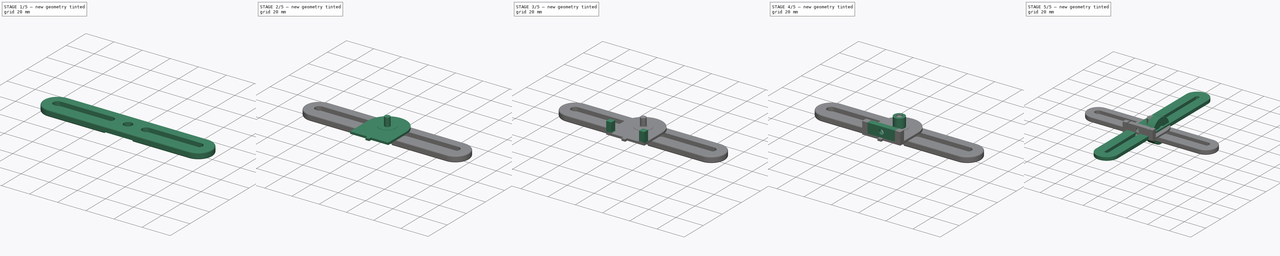
[diagram: build sequence overview — one tinted view per stage of 5, left to right]
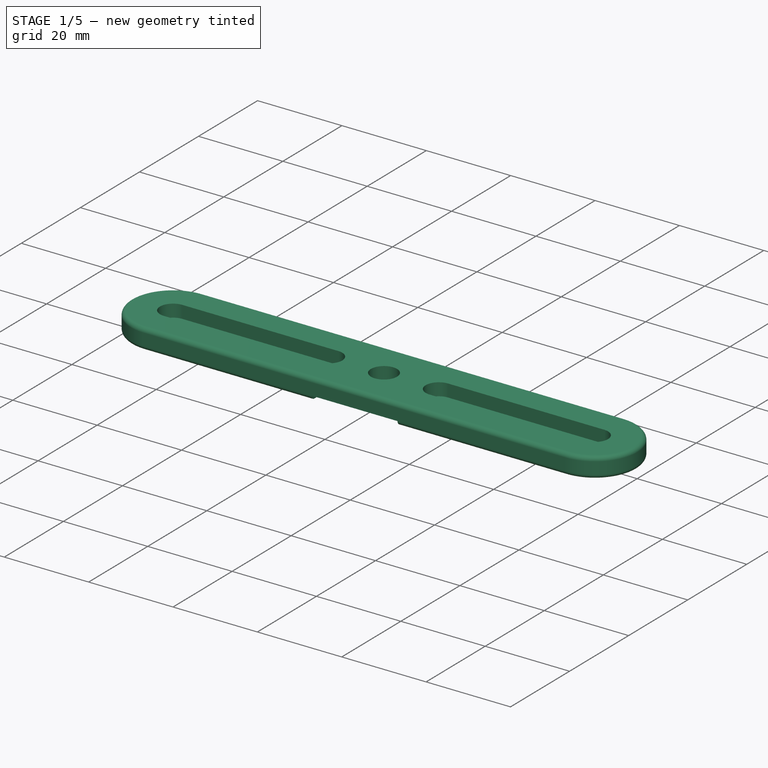
[diagram: stage 1 of 5 — iso view after this stage's code; geometry added in this stage tinted green]
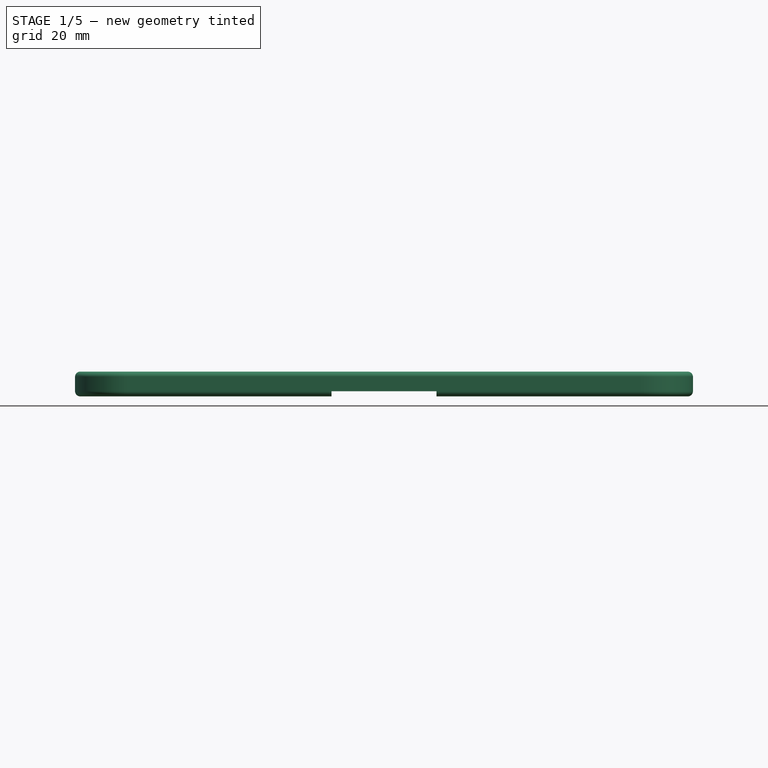
[diagram: stage 1 of 5 — front view after this stage's code; geometry added in this stage tinted green]
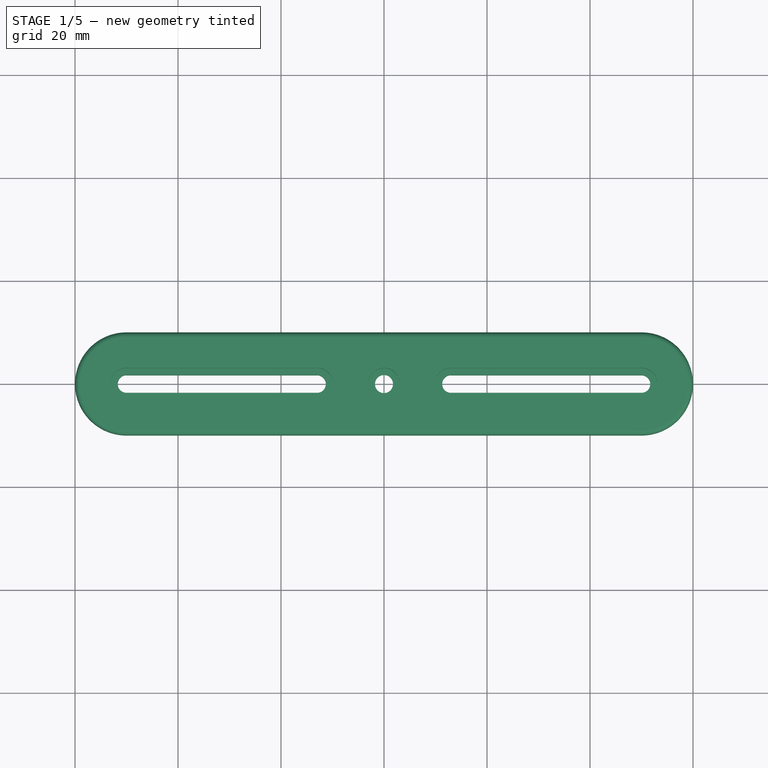
[diagram: stage 1 of 5 — top view after this stage's code; geometry added in this stage tinted green]
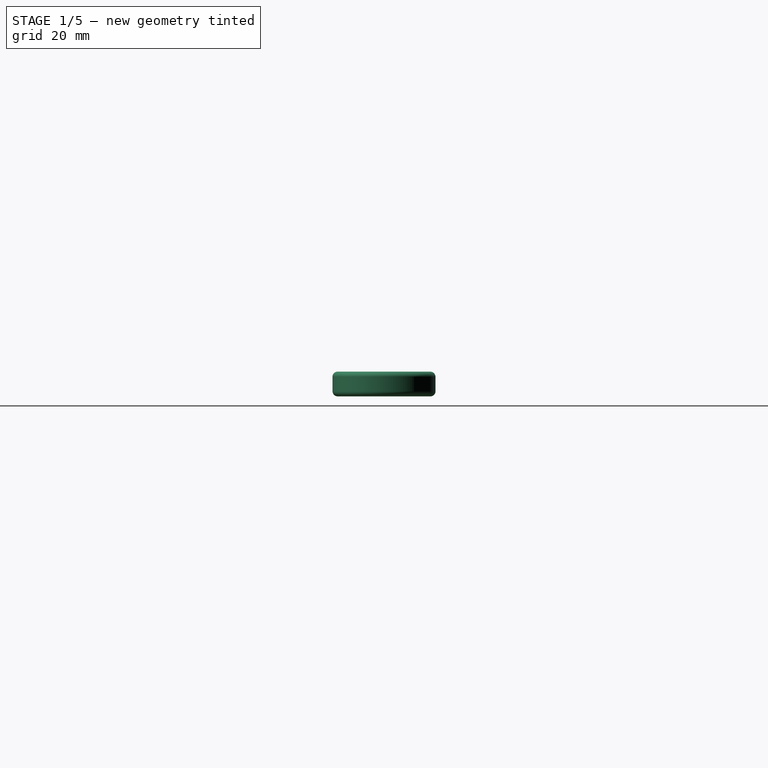
[diagram: stage 1 of 5 — right view after this stage's code; geometry added in this stage tinted green]
FCSTD DOCUMENT  (FreeCAD 0.17R13541 (Git))
Label: FilaRoller
License: All rights reserved
LicenseURL: http://en.wikipedia.org/wiki/All_rights_reserved
objects: Sketcher::SketchObject×14, PartDesign::Pad×11, PartDesign::Fillet×7, PartDesign::Pocket×3, App::DocumentObjectGroup×3, Spreadsheet::Sheet×1, Part::Cut×1, Part::FeaturePython×1
note: 51 computed .brp shape members not serialized (recipe doc carries the construction recipe); baked Part::Feature solids carry a one-line shape summary decoded from their .brp

FEATURE [Sketcher::SketchObject] Sketch  label="Stand"
  MapMode = 5
  expr: Constraints[4] = Params.StandWidth
  expr: Constraints[3] = Params.StandLength
  sketch-geometry (13):
    g0: LineSegment StartX=-50 StartY=10 StartZ=0 EndX=50 EndY=10 EndZ=0
    g1: LineSegment StartX=50 StartY=-10 StartZ=0 EndX=-50 EndY=-10 EndZ=0
    g2: ArcOfCircle CenterX=-50 CenterY=0 CenterZ=0 NormalX=0 NormalY=0 NormalZ=1 AngleXU=0 Radius=10 StartAngle=1.5708 EndAngle=4.71239
    g3: ArcOfCircle CenterX=50 CenterY=0 CenterZ=0 NormalX=0 NormalY=0 NormalZ=1 AngleXU=0 Radius=10 StartAngle=4.71239 EndAngle=7.85398
    g4: ArcOfCircle CenterX=-50 CenterY=0 CenterZ=0 NormalX=0 NormalY=0 NormalZ=1 AngleXU=0 Radius=1.7 StartAngle=1.57079 EndAngle=4.7124
    g5: ArcOfCircle CenterX=50 CenterY=0 CenterZ=0 NormalX=0 NormalY=0 NormalZ=1 AngleXU=0 Radius=1.7 StartAngle=4.71238 EndAngle=7.85398
    g6: LineSegment StartX=-50 StartY=1.7 StartZ=0 EndX=-13 EndY=1.7 EndZ=0
    g7: LineSegment StartX=13 StartY=1.7 StartZ=0 EndX=50 EndY=1.7 EndZ=0
    g8: LineSegment StartX=-50 StartY=-1.7 StartZ=0 EndX=-13 EndY=-1.7 EndZ=0
    g9: LineSegment StartX=13 StartY=-1.7 StartZ=0 EndX=50 EndY=-1.7 EndZ=0
    g10: ArcOfCircle CenterX=-13 CenterY=0 CenterZ=0 NormalX=0 NormalY=0 NormalZ=1 AngleXU=0 Radius=1.7 StartAngle=4.71239 EndAngle=7.85399
    g11: ArcOfCircle CenterX=13 CenterY=0 CenterZ=0 NormalX=0 NormalY=0 NormalZ=1 AngleXU=0 Radius=1.7 StartAngle=1.57079 EndAngle=4.71239
    g12: Circle CenterX=0 CenterY=0 CenterZ=0 NormalX=0 NormalY=0 NormalZ=1 AngleXU=0 Radius=1.75
  constraints (39):
    c: Horizontal(g0)
    c: Horizontal(g1)
    c: Symmetric(g1,g0,g-1)
    c: DistanceX(g0,g0) = 100
    c: DistanceY(g1,g0) = 20
    c: PointOnObject(g2,g-1)
    c: Coincident(g2,g0)
    c: Coincident(g2,g1)
    c: PointOnObject(g3,g-1)
    c: Coincident(g3,g0)
    c: Coincident(g3,g1)
    c: Tangent(g2,g0)
    c: Equal(g2,g3)
    c: Symmetric(g4,g5,g-1)
    c: DistanceY(g4,g4) = 3.4
    c: Coincident(g4,g2)
    c: Coincident(g5,g3)
    c: Symmetric(g6,g7,g-2)
    c: Coincident(g6,g4)
    c: Horizontal(g6)
    c: Coincident(g7,g5)
    c: Horizontal(g7)
    c: DistanceX(g6,g7) = 26
    c: Coincident(g8,g4)
    c: Horizontal(g8)
    c: Coincident(g9,g5)
    c: Horizontal(g9)
    c: Equal(g6,g8)
    c: Equal(g7,g9)
    c: PointOnObject(g10,g-1)
    c: Coincident(g10,g6)
    c: Coincident(g10,g8)
    c: PointOnObject(g11,g-1)
    c: Coincident(g11,g7)
    c: Coincident(g11,g9)
    c: Tangent(g9,g11)
    c: Tangent(g8,g10)
    c: Coincident(g12,g-1)
    c: Radius(g12) = 1.75
FEATURE [Spreadsheet::Sheet] Spreadsheet  label="Params"
  cells = A2=StandLength; B2(StandLength)=100; A3=StandWidth; B3(StandWidth)=20; A4=BridgeLength; B4(BridgeLength)=120; A5=BridgeWidth; B5(BridgeWidth)=20
FEATURE [Sketcher::SketchObject] Sketch001  label="StandScrewHeadGroove"
  MapMode = 5
  sketch-geometry (9):
    g0: ArcOfCircle CenterX=-50 CenterY=0 CenterZ=0 NormalX=0 NormalY=0 NormalZ=1 AngleXU=0 Radius=3.1 StartAngle=1.5708 EndAngle=4.71239
    g1: ArcOfCircle CenterX=50 CenterY=0 CenterZ=0 NormalX=0 NormalY=0 NormalZ=1 AngleXU=0 Radius=3.1 StartAngle=4.71239 EndAngle=7.85398
    g2: LineSegment StartX=-50 StartY=-3.1 StartZ=0 EndX=-13 EndY=-3.1 EndZ=0
    g3: LineSegment StartX=13 StartY=-3.1 StartZ=0 EndX=50 EndY=-3.1 EndZ=0
    g4: LineSegment StartX=-50 StartY=3.1 StartZ=0 EndX=-13 EndY=3.1 EndZ=0
    g5: LineSegment StartX=13 StartY=3.1 StartZ=0 EndX=50 EndY=3.1 EndZ=0
    g6: ArcOfCircle CenterX=-13 CenterY=0 CenterZ=0 NormalX=0 NormalY=0 NormalZ=1 AngleXU=0 Radius=3.1 StartAngle=4.71239 EndAngle=7.85399
    g7: ArcOfCircle CenterX=13 CenterY=0 CenterZ=0 NormalX=0 NormalY=0 NormalZ=1 AngleXU=0 Radius=3.1 StartAngle=1.57079 EndAngle=4.71239
    g8: Circle CenterX=0 CenterY=0 CenterZ=0 NormalX=0 NormalY=0 NormalZ=1 AngleXU=0 Radius=3.1
  constraints (29):
    c: Symmetric(g0,g1,g-1)
    c: DistanceY(g0,g0) = 6.2
    c: DistanceX(g0,g1) = 100
    c: Equal(g0,g1)
    c: DistanceX(g4,g5) = 26
    c: Coincident(g2,g0)
    c: Horizontal(g2)
    c: Coincident(g3,g1)
    c: Horizontal(g3)
    c: Coincident(g4,g0)
    c: Horizontal(g4)
    c: Coincident(g5,g1)
    c: Horizontal(g5)
    c: Equal(g5,g3)
    c: Equal(g3,g2)
    c: Equal(g2,g4)
    c: PointOnObject(g0,g-1)
    c: Tangent(g1,g5)
    c: Tangent(g0,g2)
    c: PointOnObject(g6,g-1)
    c: Coincident(g6,g4)
    c: Coincident(g6,g2)
    c: PointOnObject(g7,g-1)
    c: Coincident(g7,g5)
    c: Coincident(g7,g3)
    c: Tangent(g7,g3)
    c: Tangent(g4,g6)
    c: Coincident(g8,g-1)
    c: Radius(g8) = 3.1
FEATURE [PartDesign::Pad] Pad  label="_Stand"
  Length = 4.8
  Length2 = 100
  Profile = -> Sketch
  Type = 0
FEATURE [PartDesign::Pad] Pad001  label="_StandScrewHeadGroove"
  Length = 3
  Length2 = 100
  Profile = -> Sketch001
  Type = 0
FEATURE [PartDesign::Fillet] Fillet
  Base = -> Pad [Edge10,Edge12,Edge4,Edge7,Edge6,Edge9,Edge11,Edge3]
  Radius = 1
FEATURE [Part::Cut] Cut  label="Stand_Final"
  Base = -> Fillet
  Placement = pos=(0,0,0) rot=(1,0,0;3.14159rad)
  Tool = -> Pad001
FEATURE [App::DocumentObjectGroup] Group002  label="Bearing_B"
  Group = -> [Clone,Pad011,Pad012,Pad013,Fillet004,Fillet005,Fillet006]
FEATURE [Sketcher::SketchObject] Sketch013
  MapMode = 5
  Placement = pos=(0,0,-4.8) rot=(1,0,0;3.14159rad)
  Support = -> [Cut]
  sketch-geometry (4):
    g0: LineSegment StartX=-10.2 StartY=10.2 StartZ=0 EndX=10.2 EndY=10.2 EndZ=0
    g1: LineSegment StartX=10.2 StartY=10.2 StartZ=0 EndX=10.2 EndY=-10.2 EndZ=0
    g2: LineSegment StartX=10.2 StartY=-10.2 StartZ=0 EndX=-10.2 EndY=-10.2 EndZ=0
    g3: LineSegment StartX=-10.2 StartY=-10.2 StartZ=0 EndX=-10.2 EndY=10.2 EndZ=0
  constraints (11):
    c: Coincident(g0,g1)
    c: Coincident(g1,g2)
    c: Coincident(g2,g3)
    c: Coincident(g3,g0)
    c: Horizontal(g0)
    c: Horizontal(g2)
    c: Vertical(g1)
    c: Vertical(g3)
    c: Symmetric(g0,g1,g-1)
    c: DistanceX(g0,g0) = 20.4
    c: Equal(g3,g0)
FEATURE [PartDesign::Pocket] Pocket002
  Length = 1
  Length2 = 100
  Placement = pos=(0,0,0) rot=(1,0,0;3.14159rad)
  Profile = -> Sketch013
  Type = 0
FEATURE [App::DocumentObjectGroup] Group  label="Stand_"
  Group = -> [Pad,Cut,Pocket002]
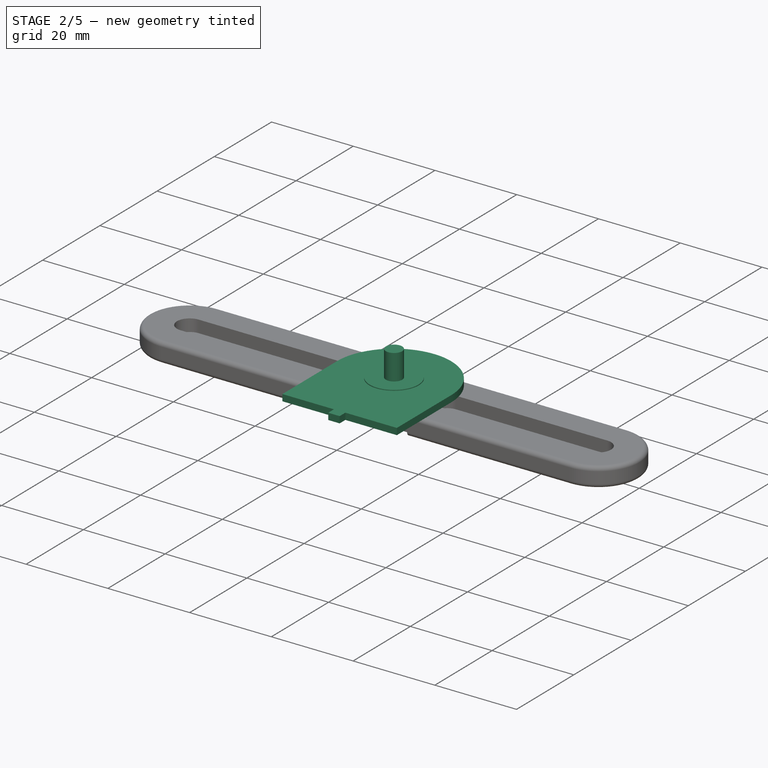
[diagram: stage 2 of 5 — iso view after this stage's code; geometry added in this stage tinted green]
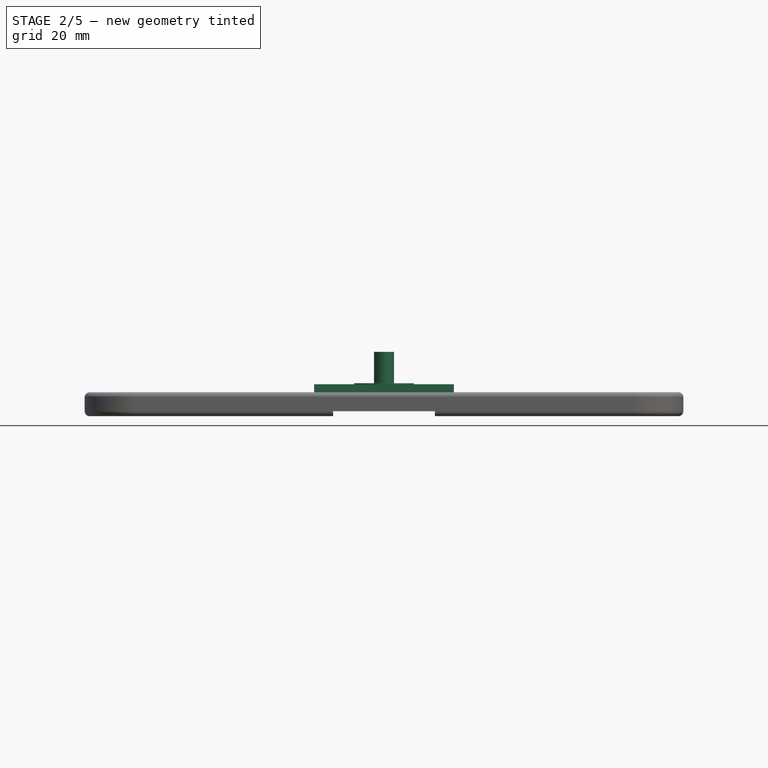
[diagram: stage 2 of 5 — front view after this stage's code; geometry added in this stage tinted green]
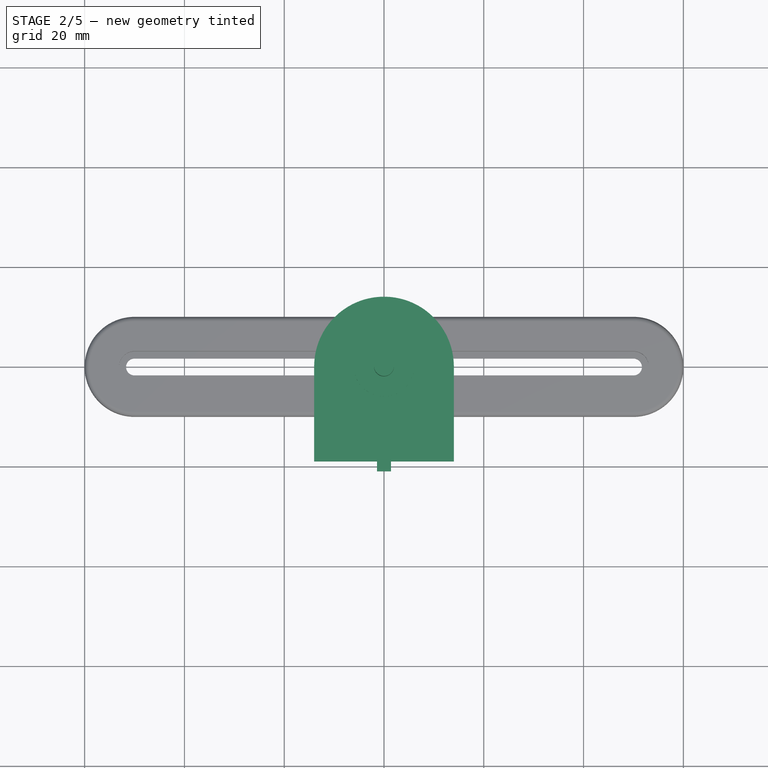
[diagram: stage 2 of 5 — top view after this stage's code; geometry added in this stage tinted green]
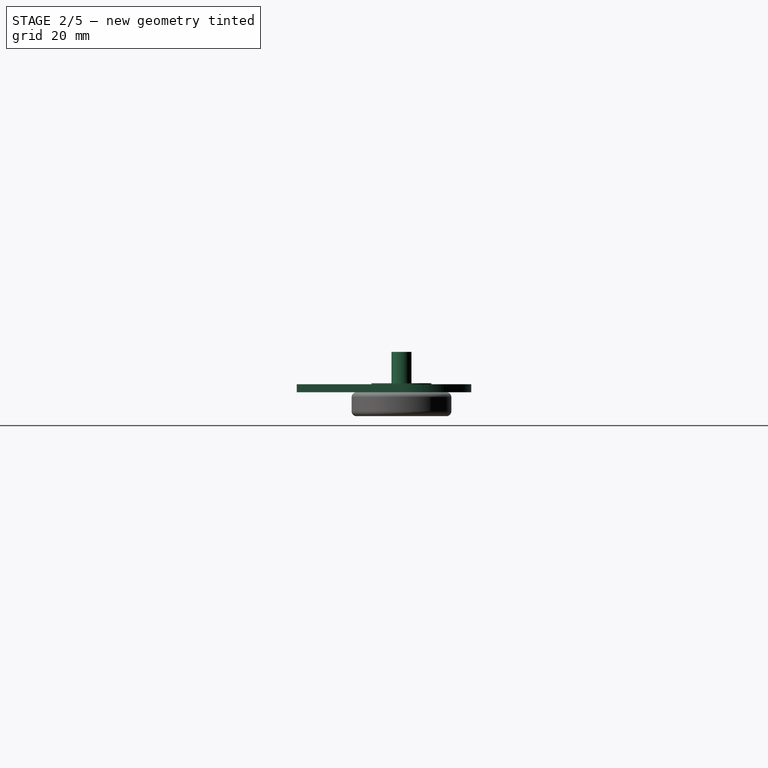
[diagram: stage 2 of 5 — right view after this stage's code; geometry added in this stage tinted green]
FEATURE [Sketcher::SketchObject] Sketch003  label="BearingHolderSide"
  MapMode = 5
  sketch-geometry (8):
    g0: LineSegment StartX=-14 StartY=0 StartZ=0 EndX=-14 EndY=-19 EndZ=0
    g1: LineSegment StartX=14 StartY=-19 StartZ=0 EndX=14 EndY=0 EndZ=0
    g2: ArcOfCircle CenterX=0 CenterY=0 CenterZ=0 NormalX=0 NormalY=0 NormalZ=1 AngleXU=0 Radius=14 StartAngle=0 EndAngle=3.14159
    g3: LineSegment StartX=-14 StartY=-19 StartZ=0 EndX=-1.4 EndY=-19 EndZ=0
    g4: LineSegment StartX=-1.4 StartY=-19 StartZ=0 EndX=-1.4 EndY=-21 EndZ=0
    g5: LineSegment StartX=-1.4 StartY=-21 StartZ=0 EndX=1.4 EndY=-21 EndZ=0
    g6: LineSegment StartX=1.4 StartY=-21 StartZ=0 EndX=1.4 EndY=-19 EndZ=0
    g7: LineSegment StartX=1.4 StartY=-19 StartZ=0 EndX=14 EndY=-19 EndZ=0
  constraints (24):
    c: PointOnObject(g0,g-1)
    c: Vertical(g0)
    c: PointOnObject(g1,g-1)
    c: Vertical(g1)
    c: Symmetric(g0,g1,g-2)
    c: DistanceX(g0,g1) = 28
    c: DistanceY(g0,g0) = 19
    c: Coincident(g2,g-1)
    c: Coincident(g2,g0)
    c: Coincident(g2,g1)
    c: Coincident(g0,g3)
    c: Horizontal(g3)
    c: Coincident(g3,g4)
    c: Coincident(g4,g5)
    c: Coincident(g5,g6)
    c: Coincident(g6,g7)
    c: Coincident(g7,g1)
    c: Horizontal(g7)
    c: Symmetric(g3,g6,g-2)
    c: Vertical(g4)
    c: Vertical(g6)
    c: DistanceX(g4,g5) = 2.8
    c: DistanceY(g4,g4) = 2
    c: Horizontal(g5)
FEATURE [PartDesign::Pad] Pad003  label="_BearingHolderSide"
  Length = 1.6
  Length2 = 100
  Profile = -> Sketch003
  Type = 0
FEATURE [Part::FeaturePython] Clone  label="Clone of bearingholderside"  # Draft clone (typed FeaturePython)
  Objects = -> [Pad003]
  Placement = pos=(0,0,1.6) rot=(0,1,0;3.14159rad)
  Scale = (1,1,1)
FEATURE [App::DocumentObjectGroup] Group001  label="Bearing_A"
  Group = -> [Pad003,Pad008,Pad009,Pad010,Pocket,Pocket001,Fillet001,Fillet002,Fillet003]
FEATURE [Sketcher::SketchObject] Sketch012  label="InnerBump001"
  MapMode = 5
  Placement = pos=(0,0,1.6) rot=(0,0,1;3.14159rad)
  Support = -> [Clone]
  sketch-geometry (1):
    g0: Circle CenterX=0 CenterY=0 CenterZ=0 NormalX=0 NormalY=0 NormalZ=1 AngleXU=0 Radius=6
  constraints (2):
    c: Coincident(g0,g-1)
    c: Radius(g0) = 6
FEATURE [PartDesign::Pad] Pad011
  Length = 0.2
  Length2 = 100
  Placement = pos=(0,0,1.6) rot=(0,1,0;3.14159rad)
  Profile = -> Sketch012
  Type = 0
FEATURE [Sketcher::SketchObject] Sketch007  label="InnerAxis"
  MapMode = 5
  Placement = pos=(0,0,1.8) rot=(0,0,1;3.14159rad)
  Support = -> [Pad011]
  sketch-geometry (1):
    g0: Circle CenterX=0 CenterY=0 CenterZ=0 NormalX=0 NormalY=0 NormalZ=1 AngleXU=0 Radius=2
  constraints (2):
    c: Coincident(g0,g-1)
    c: Radius(g0) = 2
FEATURE [PartDesign::Pad] Pad012  label="_InnerAxis"
  Length = 6.3
  Length2 = 100
  Placement = pos=(0,0,1.6) rot=(0,1,0;3.14159rad)
  Profile = -> Sketch007
  Type = 0
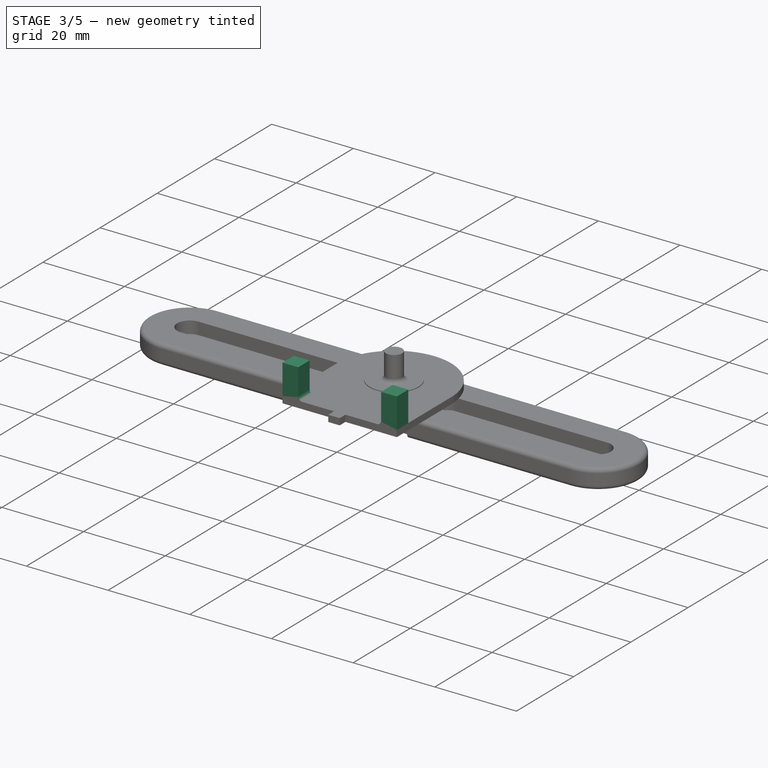
[diagram: stage 3 of 5 — iso view after this stage's code; geometry added in this stage tinted green]
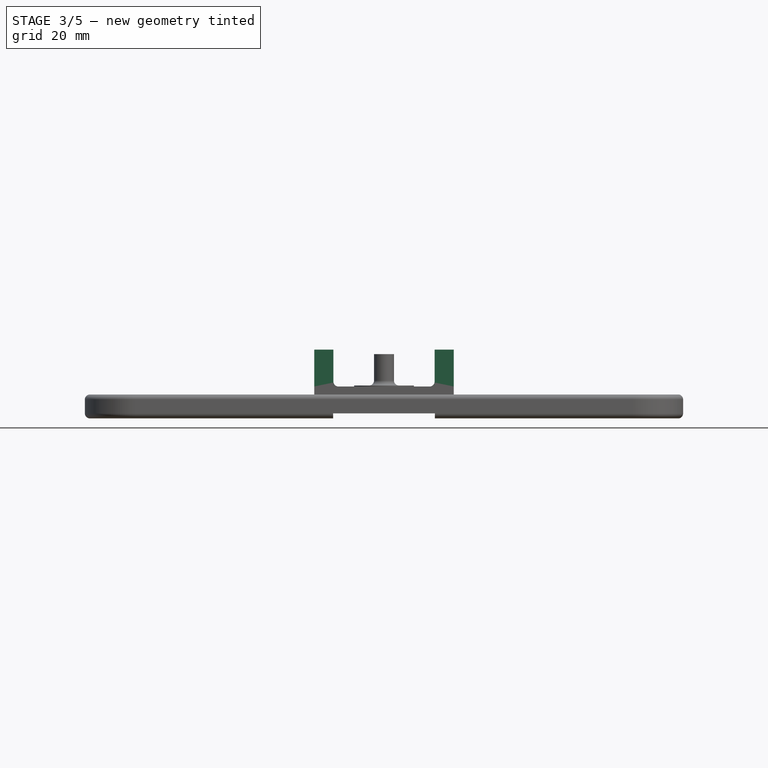
[diagram: stage 3 of 5 — front view after this stage's code; geometry added in this stage tinted green]
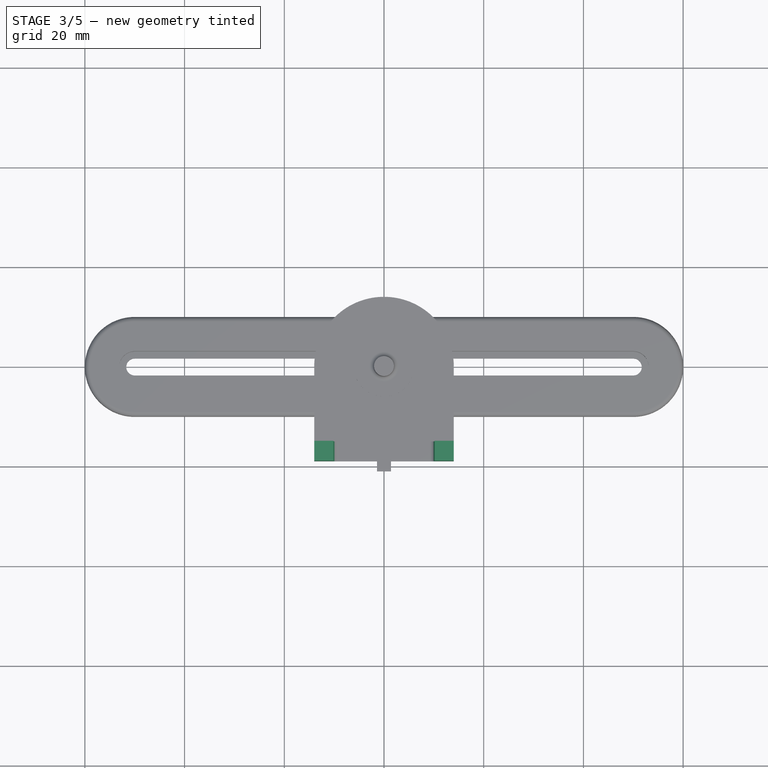
[diagram: stage 3 of 5 — top view after this stage's code; geometry added in this stage tinted green]
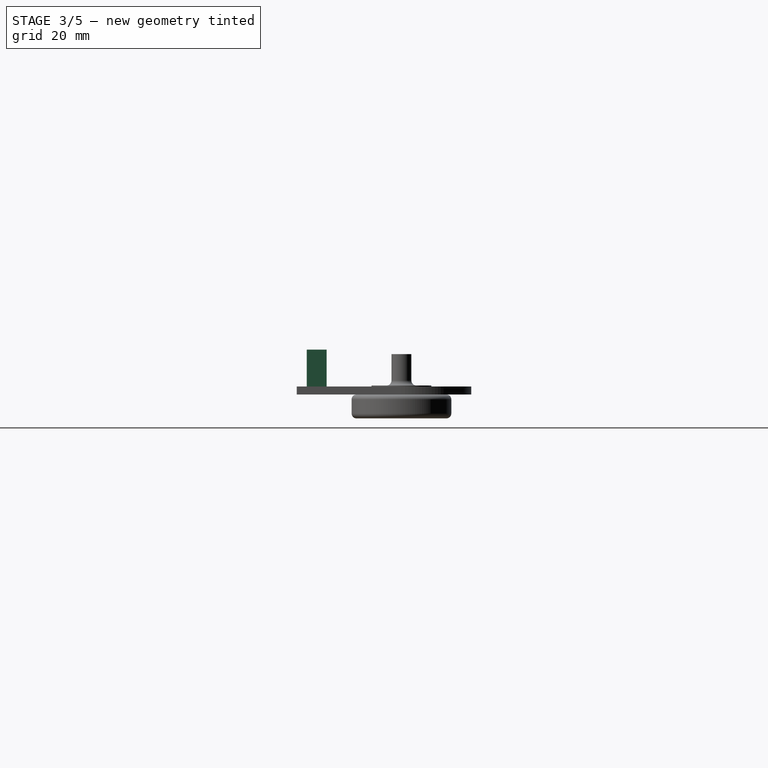
[diagram: stage 3 of 5 — right view after this stage's code; geometry added in this stage tinted green]
FEATURE [Sketcher::SketchObject] Sketch010  label="InnerBump"
  MapMode = 5
  Placement = pos=(0,0,1.6) rot=(0,0,1;0rad)
  Support = -> [Pad003]
  sketch-geometry (1):
    g0: Circle CenterX=0 CenterY=0 CenterZ=0 NormalX=0 NormalY=0 NormalZ=1 AngleXU=0 Radius=6
  constraints (2):
    c: Coincident(g0,g-1)
    c: Radius(g0) = 6
FEATURE [PartDesign::Pad] Pad008  label="_InnerBump"
  Length = 0.2
  Length2 = 100
  Profile = -> Sketch010
  Type = 0
FEATURE [Sketcher::SketchObject] Sketch009  label="Base001"
  ExternalGeometry = -> [Pad012]
  MapMode = 5
  Placement = pos=(0,0,1.6) rot=(0,0,1;3.14159rad)
  Support = -> [Pad012]
  sketch-geometry (8):
    g0: LineSegment StartX=-14 StartY=19 StartZ=0 EndX=-10.15 EndY=19 EndZ=0
    g1: LineSegment StartX=-10.15 StartY=19 StartZ=0 EndX=-10.15 EndY=15 EndZ=0
    g2: LineSegment StartX=-10.15 StartY=15 StartZ=0 EndX=-14 EndY=15 EndZ=0
    g3: LineSegment StartX=-14 StartY=15 StartZ=0 EndX=-14 EndY=19 EndZ=0
    g4: LineSegment StartX=14 StartY=19 StartZ=0 EndX=10.15 EndY=19 EndZ=0
    g5: LineSegment StartX=10.15 StartY=19 StartZ=0 EndX=10.15 EndY=15 EndZ=0
    g6: LineSegment StartX=10.15 StartY=15 StartZ=0 EndX=14 EndY=15 EndZ=0
    g7: LineSegment StartX=14 StartY=15 StartZ=0 EndX=14 EndY=19 EndZ=0
  constraints (22):
    c: Coincident(g0,g1)
    c: Coincident(g1,g2)
    c: Coincident(g2,g3)
    c: Coincident(g3,g0)
    c: Horizontal(g0)
    c: Horizontal(g2)
    c: Vertical(g1)
    c: Vertical(g3)
    c: Coincident(g4,g5)
    c: Coincident(g5,g6)
    c: Coincident(g6,g7)
    c: Coincident(g7,g4)
    c: Horizontal(g4)
    c: Horizontal(g6)
    c: Vertical(g5)
    c: Vertical(g7)
    c: Equal(g2,g6)
    c: Equal(g1,g5)
    c: DistanceY(g3,g3) = 4
    c: DistanceX(g2,g2) = 3.85
    c: Coincident(g0,g-3)
    c: Coincident(g4,g-4)
FEATURE [PartDesign::Pad] Pad013  label="_Base001"
  Length = 7.4
  Length2 = 100
  Placement = pos=(0,0,1.6) rot=(0,1,0;3.14159rad)
  Profile = -> Sketch009
  Type = 0
FEATURE [PartDesign::Fillet] Fillet004  label="InnerAxisFilet"
  Base = -> Pad013 [Edge52]
  Placement = pos=(0,0,1.6) rot=(0,1,0;3.14159rad)
  Radius = 1
FEATURE [PartDesign::Fillet] Fillet005  label="BaseFilet001"
  Base = -> Fillet004 [Edge11,Edge17]
  Placement = pos=(0,0,1.6) rot=(0,1,0;3.14159rad)
  Radius = 1
FEATURE [PartDesign::Fillet] Fillet006  label="Bearing_B_Final"
  Base = -> Fillet005 [Edge24,Edge29]
  Placement = pos=(0,0,1.6) rot=(0,1,0;3.14159rad)
  Radius = 1
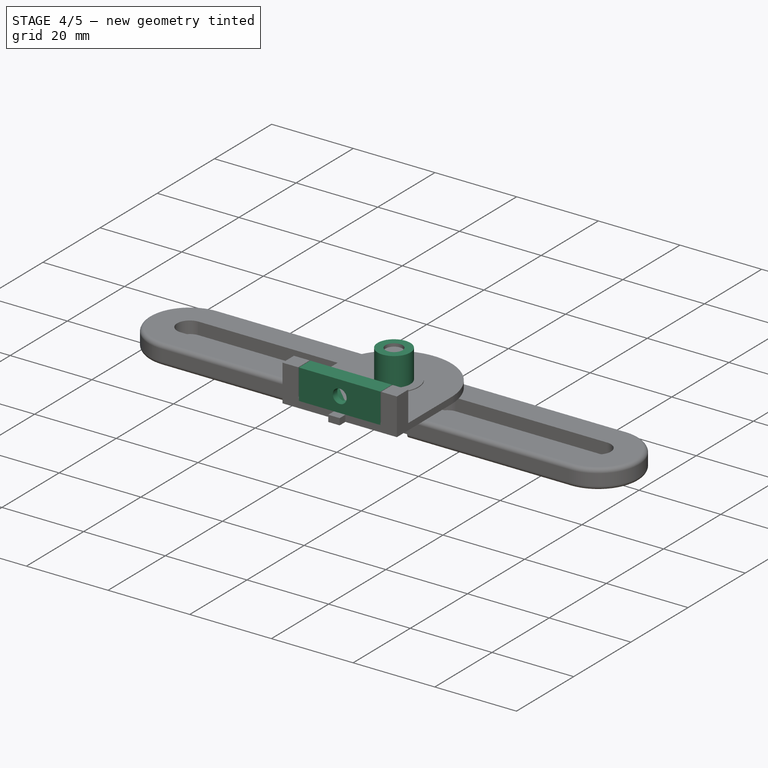
[diagram: stage 4 of 5 — iso view after this stage's code; geometry added in this stage tinted green]
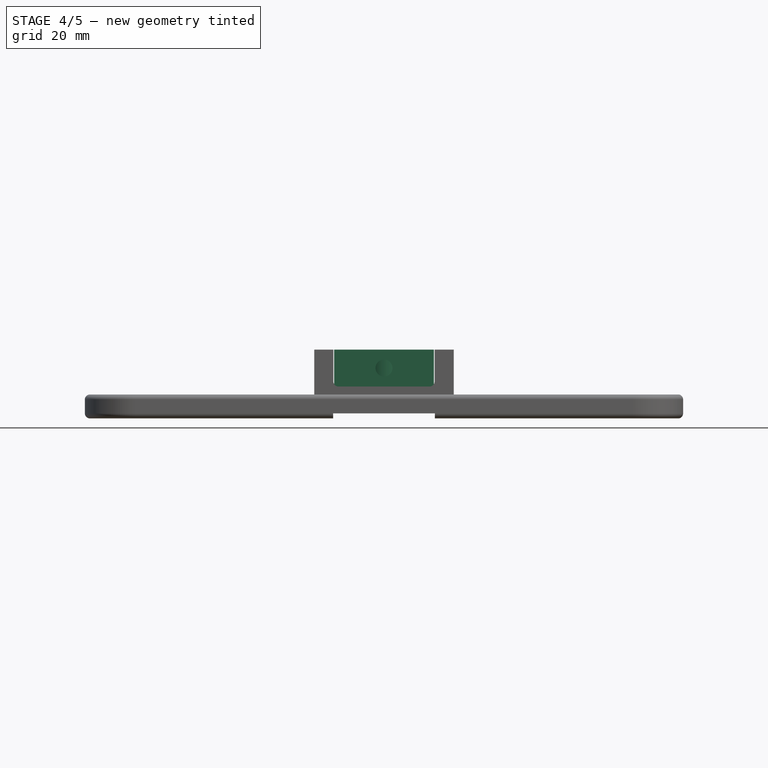
[diagram: stage 4 of 5 — front view after this stage's code; geometry added in this stage tinted green]
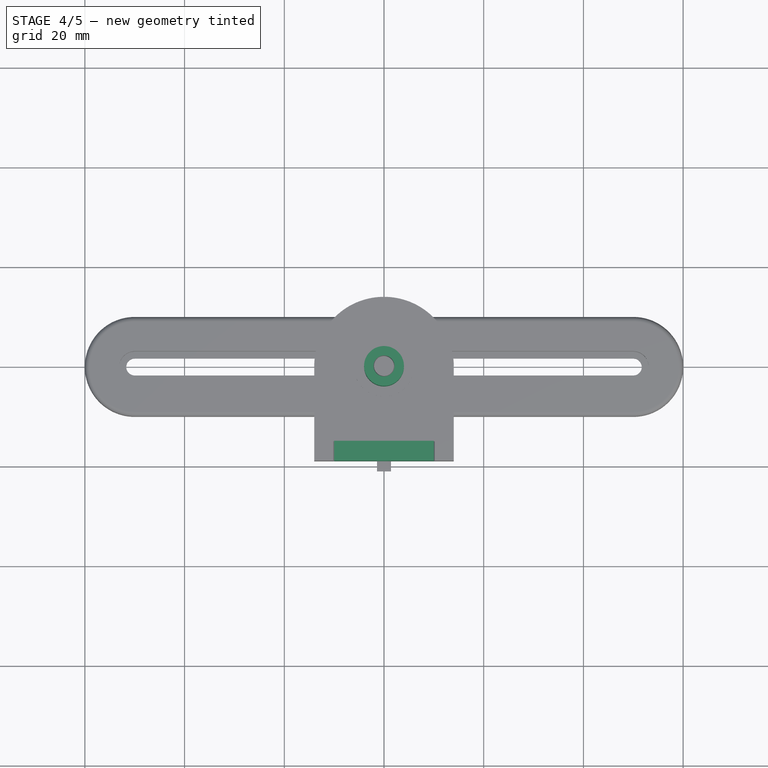
[diagram: stage 4 of 5 — top view after this stage's code; geometry added in this stage tinted green]
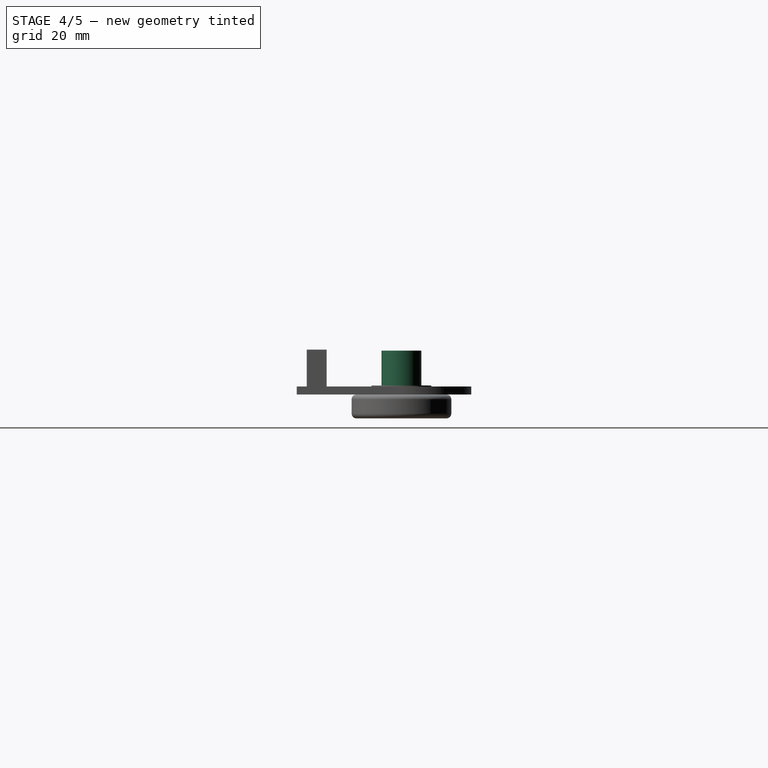
[diagram: stage 4 of 5 — right view after this stage's code; geometry added in this stage tinted green]
FEATURE [Sketcher::SketchObject] Sketch004  label="BearingAxis"
  MapMode = 5
  Placement = pos=(0,0,1.8) rot=(0,0,1;0rad)
  Support = -> [Pad008]
  sketch-geometry (2):
    g0: Circle CenterX=0 CenterY=0 CenterZ=0 NormalX=0 NormalY=0 NormalZ=1 AngleXU=0 Radius=4
    g1: Circle CenterX=0 CenterY=0 CenterZ=0 NormalX=0 NormalY=0 NormalZ=1 AngleXU=0 Radius=2.1
  constraints (4):
    c: Coincident(g0,g-1)
    c: Coincident(g1,g-1)
    c: Radius(g0) = 4
    c: Radius(g1) = 2.1
FEATURE [PartDesign::Pad] Pad009  label="_BearingAxis"
  Length = 7
  Length2 = 100
  Profile = -> Sketch004
  Type = 0
FEATURE [Sketcher::SketchObject] Sketch011  label="Base"
  ExternalGeometry = -> [Pad003]
  MapMode = 5
  Placement = pos=(0,0,1.6) rot=(0,0,1;0rad)
  Support = -> [Pad009]
  sketch-geometry (4):
    g0: LineSegment StartX=-10 StartY=-19 StartZ=0 EndX=10 EndY=-19 EndZ=0
    g1: LineSegment StartX=10 StartY=-19 StartZ=0 EndX=10 EndY=-15 EndZ=0
    g2: LineSegment StartX=10 StartY=-15 StartZ=0 EndX=-10 EndY=-15 EndZ=0
    g3: LineSegment StartX=-10 StartY=-15 StartZ=0 EndX=-10 EndY=-19 EndZ=0
  constraints (12):
    c: Coincident(g0,g1)
    c: Coincident(g1,g2)
    c: Coincident(g2,g3)
    c: Coincident(g3,g0)
    c: Horizontal(g0)
    c: Horizontal(g2)
    c: Vertical(g1)
    c: Vertical(g3)
    c: DistanceY(g3,g3) = 4
    c: Symmetric(g2,g1,g-2)
    c: PointOnObject(g0,g-3)
    c: DistanceX(g-3,g0) = 4
FEATURE [PartDesign::Pad] Pad010  label="_Base"
  Length = 7.4
  Length2 = 100
  Profile = -> Sketch011
  Type = 0
FEATURE [Sketcher::SketchObject] Sketch006  label="ScrewHole"
  ExternalGeometry = -> [Pad010]
  MapMode = 5
  Placement = pos=(0,-15,0) rot=(0,0.707107,0.707107;3.14159rad)
  Support = -> [Pad010]
  sketch-geometry (3):
    g0: Circle CenterX=0 CenterY=5.3 CenterZ=0 NormalX=0 NormalY=0 NormalZ=1 AngleXU=0 Radius=1.7
    g1: GeomPoint [constr] X=0 Y=9 Z=0
    g2: GeomPoint [constr] X=0 Y=1.6 Z=0
  constraints (7):
    c: Radius(g0) = 1.7
    c: PointOnObject(g0,g-2)
    c: PointOnObject(g2,g-4)
    c: PointOnObject(g1,g-3)
    c: PointOnObject(g1,g-2)
    c: PointOnObject(g2,g-2)
    c: Symmetric(g2,g1,g0)
FEATURE [PartDesign::Pocket] Pocket  label="_ScrewHole"
  Length = 5
  Length2 = 100
  Profile = -> Sketch006
  Type = 2
FEATURE [Sketcher::SketchObject] Sketch005  label="NutHole"
  ExternalGeometry = -> [Pocket]
  MapMode = 5
  Placement = pos=(0,-15,0) rot=(0,0.707107,0.707107;3.14159rad)
  Support = -> [Pocket]
  sketch-geometry (9):
    g0: GeomPoint [constr] X=0 Y=9 Z=0
    g1: GeomPoint [constr] X=0 Y=1.6 Z=0
    g2: LineSegment StartX=1.6 StartY=2.52872 StartZ=0 EndX=3.2 EndY=5.3 EndZ=0
    g3: LineSegment StartX=3.2 StartY=5.3 StartZ=0 EndX=1.6 EndY=8.07128 EndZ=0
    g4: LineSegment StartX=1.6 StartY=8.07128 StartZ=0 EndX=-1.6 EndY=8.07128 EndZ=0
    g5: LineSegment StartX=-1.6 StartY=8.07128 StartZ=0 EndX=-3.2 EndY=5.3 EndZ=0
    g6: LineSegment StartX=-3.2 StartY=5.3 StartZ=0 EndX=-1.6 EndY=2.52872 EndZ=0
    g7: LineSegment StartX=-1.6 StartY=2.52872 StartZ=0 EndX=1.6 EndY=2.52872 EndZ=0
    g8: Circle [constr] CenterX=0 CenterY=5.3 CenterZ=0 NormalX=0 NormalY=0 NormalZ=1 AngleXU=0 Radius=3.2
  constraints (21):
    c: PointOnObject(g0,g-2)
    c: PointOnObject(g1,g-2)
    c: Coincident(g2,g3)
    c: Coincident(g3,g4)
    c: Coincident(g4,g5)
    c: Coincident(g5,g6)
    c: Coincident(g6,g7)
    c: Coincident(g7,g2)
    c: Equal(g2, g3-g7) x5
    c: PointOnObject(g2,g8)
    c: PointOnObject(g3,g8)
    c: PointOnObject(g4,g8)
    c: PointOnObject(g5,g8)
    c: PointOnObject(g6,g8)
    c: PointOnObject(g7,g8)
    c: PointOnObject(g8,g-2)
    c: Horizontal(g7)
    c: Symmetric(g1,g0,g8)
    c: Radius(g8) = 3.2
    c: PointOnObject(g0,g-3)
    c: PointOnObject(g1,g-4)
FEATURE [PartDesign::Pocket] Pocket001  label="_NutHole"
  Length = 2.4
  Length2 = 100
  Profile = -> Sketch005
  Type = 0
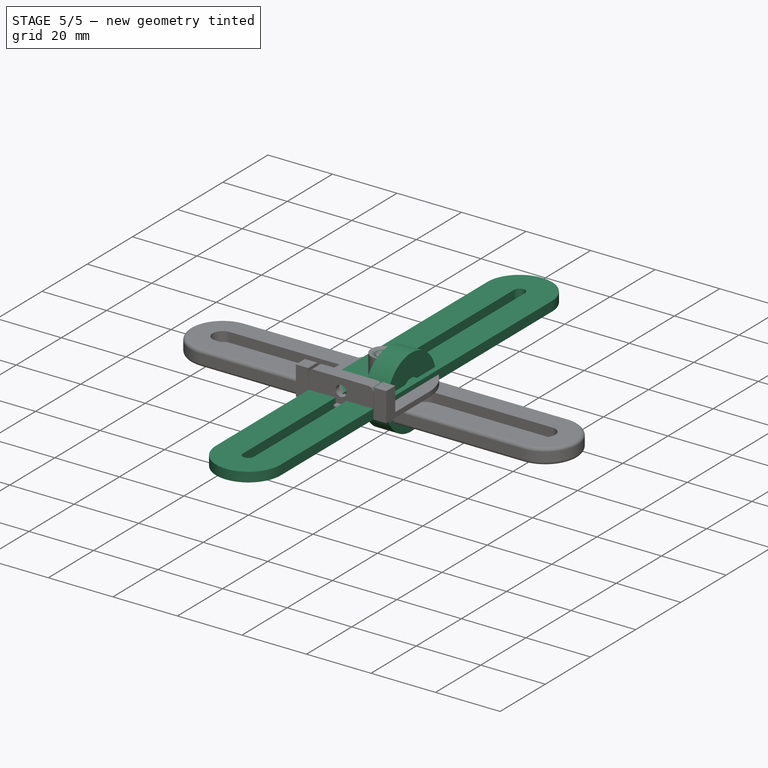
[diagram: stage 5 of 5 — iso view after this stage's code; geometry added in this stage tinted green]
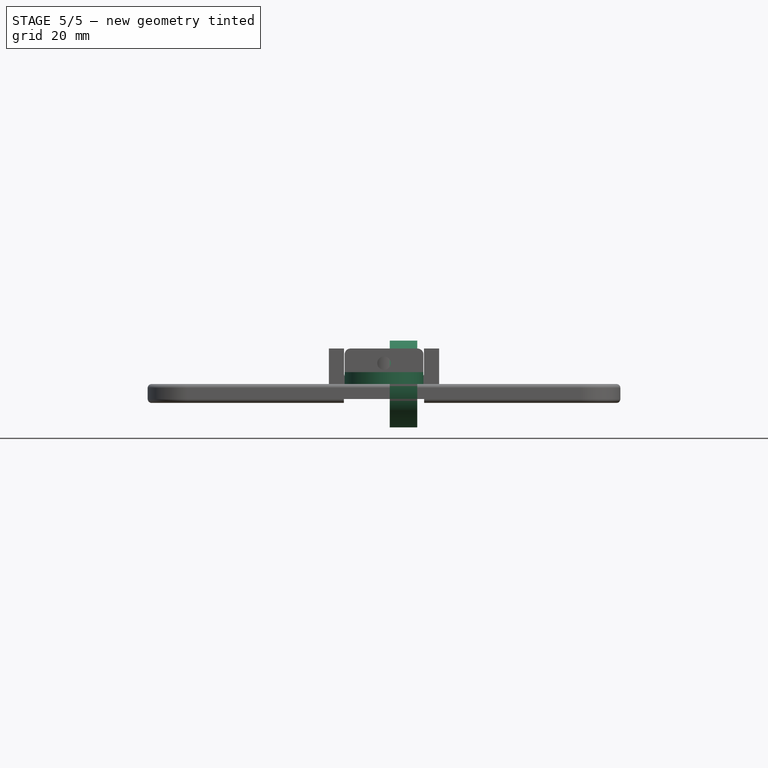
[diagram: stage 5 of 5 — front view after this stage's code; geometry added in this stage tinted green]
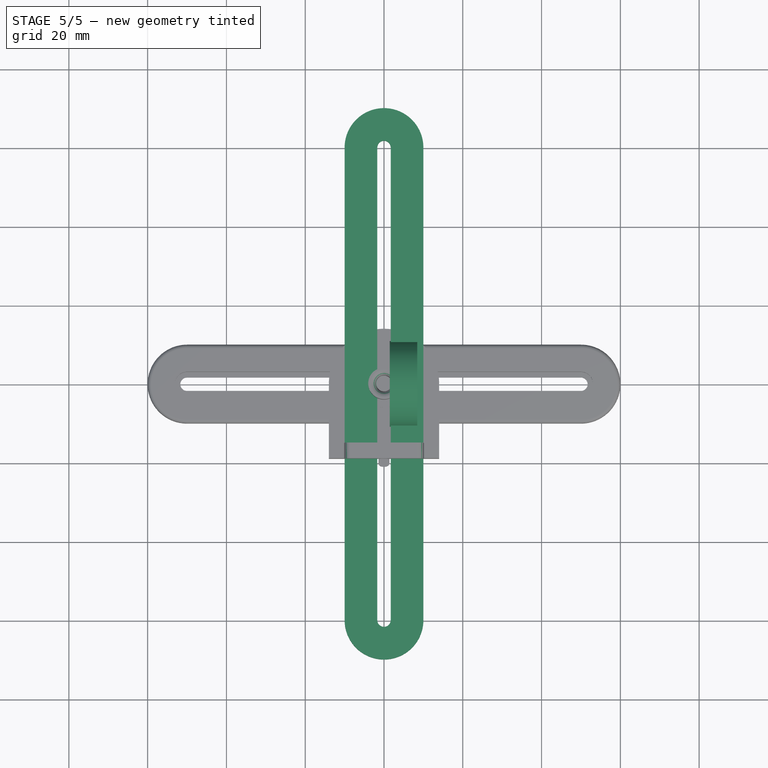
[diagram: stage 5 of 5 — top view after this stage's code; geometry added in this stage tinted green]
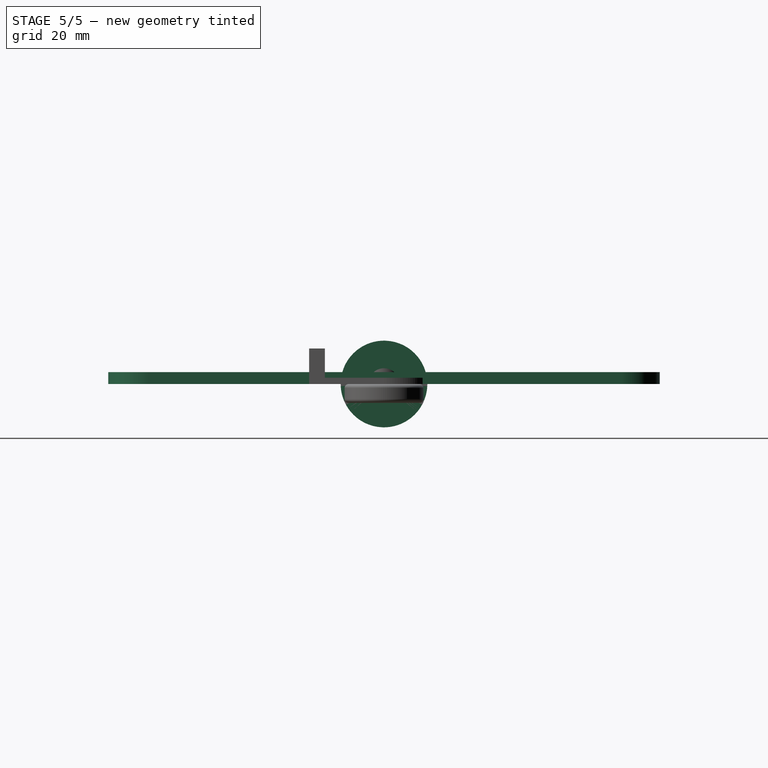
[diagram: stage 5 of 5 — right view after this stage's code; geometry added in this stage tinted green]
FEATURE [Sketcher::SketchObject] Sketch002  label="608ZZ"
  MapMode = 5
  Placement = pos=(1.45,0,0) rot=(0.57735,0.57735,0.57735;2.0944rad)
  sketch-geometry (2):
    g0: Circle CenterX=0 CenterY=0 CenterZ=0 NormalX=0 NormalY=0 NormalZ=1 AngleXU=0 Radius=11
    g1: Circle CenterX=0 CenterY=0 CenterZ=0 NormalX=0 NormalY=0 NormalZ=1 AngleXU=0 Radius=4
  constraints (4):
    c: Coincident(g0,g-1)
    c: Coincident(g1,g-1)
    c: Radius(g0) = 11
    c: Radius(g1) = 4
FEATURE [PartDesign::Pad] Pad002  label="608zz"
  Length = 7
  Length2 = 100
  Placement = pos=(1.45,0,0) rot=(0.57735,0.57735,0.57735;2.0944rad)
  Profile = -> Sketch002
  Type = 0
FEATURE [Sketcher::SketchObject] Sketch008  label="Bridge"
  MapMode = 5
  expr: Constraints[3] = Params.BridgeWidth
  expr: Constraints[4] = Params.BridgeLength
  sketch-geometry (8):
    g0: LineSegment StartX=10 StartY=60 StartZ=0 EndX=10 EndY=-60 EndZ=0
    g1: LineSegment StartX=-10 StartY=-60 StartZ=0 EndX=-10 EndY=60 EndZ=0
    g2: ArcOfCircle CenterX=0 CenterY=60 CenterZ=0 NormalX=0 NormalY=0 NormalZ=1 AngleXU=0 Radius=10 StartAngle=6.28318 EndAngle=9.42478
    g3: ArcOfCircle CenterX=0 CenterY=-60 CenterZ=0 NormalX=0 NormalY=0 NormalZ=1 AngleXU=0 Radius=10 StartAngle=3.14159 EndAngle=6.28319
    g4: LineSegment StartX=1.7 StartY=60 StartZ=0 EndX=1.7 EndY=-60 EndZ=0
    g5: LineSegment StartX=-1.7 StartY=-60 StartZ=0 EndX=-1.7 EndY=60 EndZ=0
    g6: ArcOfCircle CenterX=0 CenterY=60 CenterZ=0 NormalX=0 NormalY=0 NormalZ=1 AngleXU=0 Radius=1.7 StartAngle=2.52512e-07 EndAngle=3.14159
    g7: ArcOfCircle CenterX=0 CenterY=-60 CenterZ=0 NormalX=0 NormalY=0 NormalZ=1 AngleXU=0 Radius=1.7 StartAngle=3.1416 EndAngle=6.28318
  constraints (24):
    c: Vertical(g0)
    c: Vertical(g1)
    c: Symmetric(g1,g0,g-1)
    c: DistanceX(g1,g0) = 20
    c: DistanceY(g1,g1) = 120
    c: PointOnObject(g2,g-2)
    c: Coincident(g2,g1)
    c: Coincident(g2,g0)
    c: PointOnObject(g3,g-2)
    c: Coincident(g3,g1)
    c: Coincident(g3,g0)
    c: Tangent(g2,g1)
    c: Vertical(g4)
    c: Vertical(g5)
    c: Symmetric(g5,g4,g-1)
    c: Coincident(g6,g2)
    c: Coincident(g6,g5)
    c: Coincident(g6,g4)
    c: Coincident(g7,g3)
    c: Coincident(g7,g5)
    c: Coincident(g7,g4)
    c: DistanceX(g5,g4) = 3.4
    c: Equal(g3,g2)
    c: Tangent(g6,g4)
FEATURE [PartDesign::Pad] Pad006  label="_Bridge"
  Length = 3
  Length2 = 100
  Profile = -> Sketch008
  Type = 0
FEATURE [PartDesign::Fillet] Fillet001  label="AxisFilet"
  Base = -> Pocket001 [Edge66]
  Radius = 1.5
FEATURE [PartDesign::Fillet] Fillet002  label="BaseFilet"
  Base = -> Fillet001 [Edge38,Edge27]
  Radius = 1.5
FEATURE [PartDesign::Fillet] Fillet003  label="Bearing_A_Final"
  Base = -> Fillet002 [Edge68,Edge67]
  Radius = 1
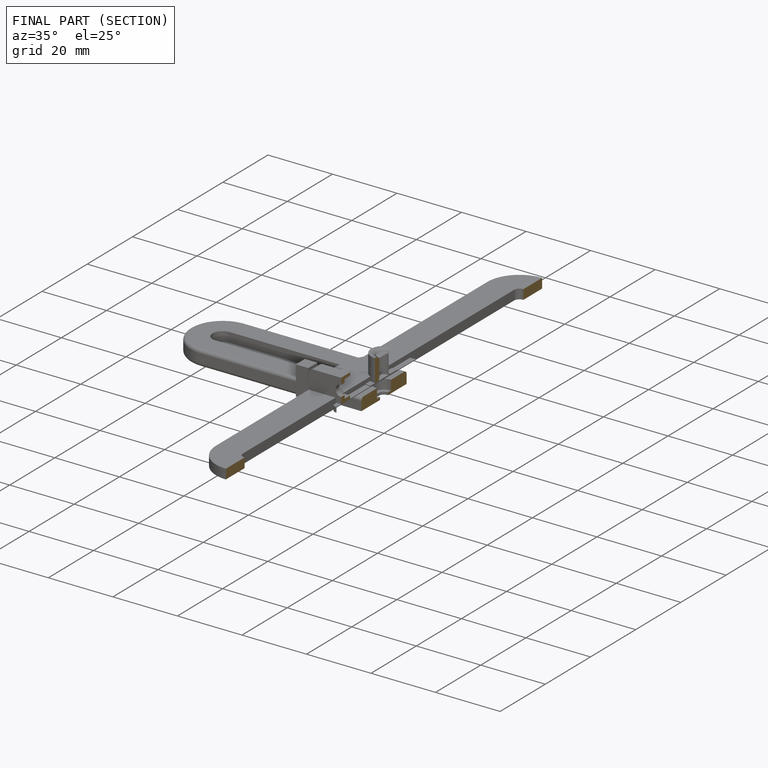
[diagram: finished part — half-section view (interior)]
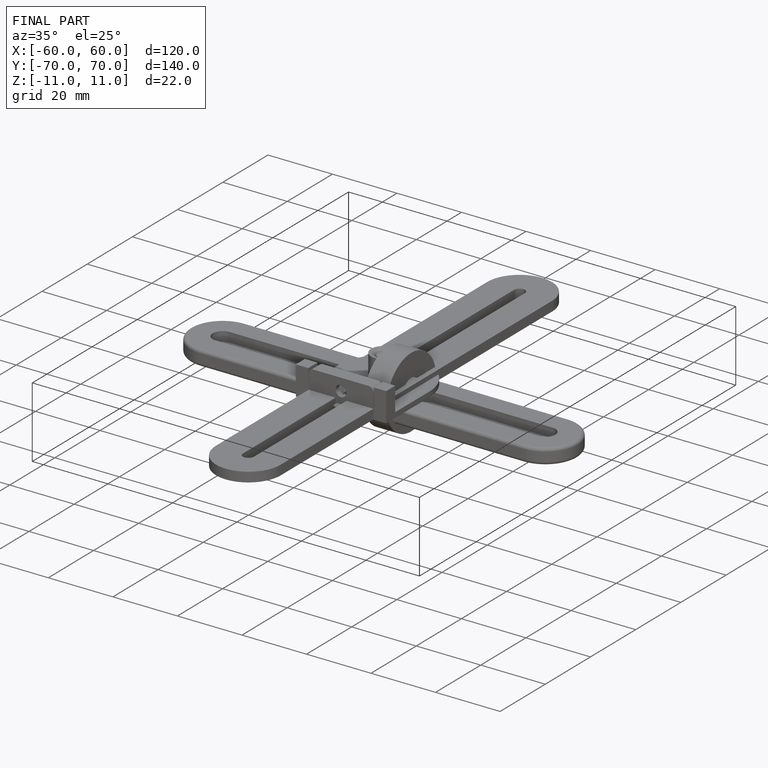
[diagram: finished part — iso view with bounding-box wireframe]
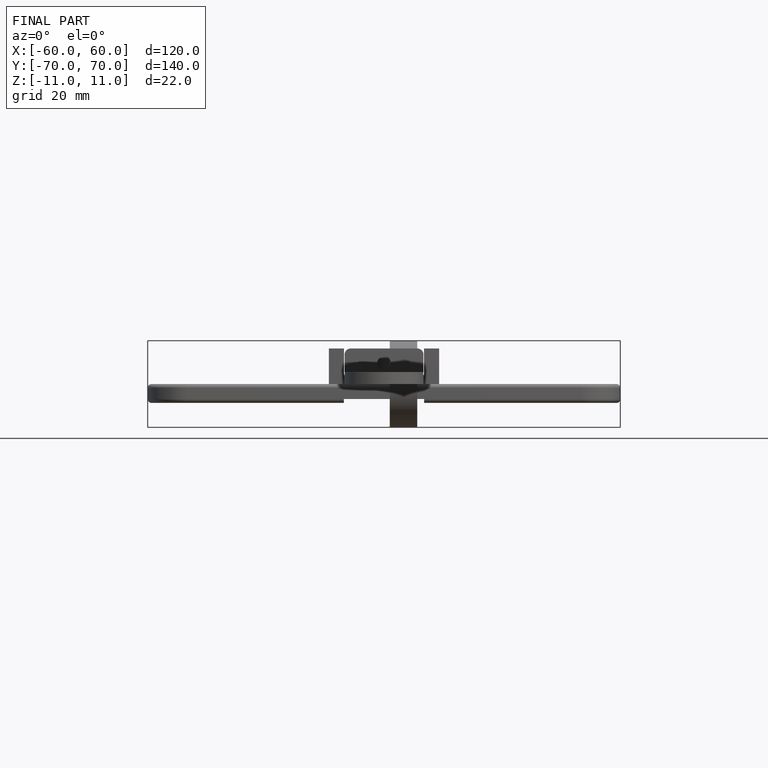
[diagram: finished part — front view with bounding-box wireframe]
